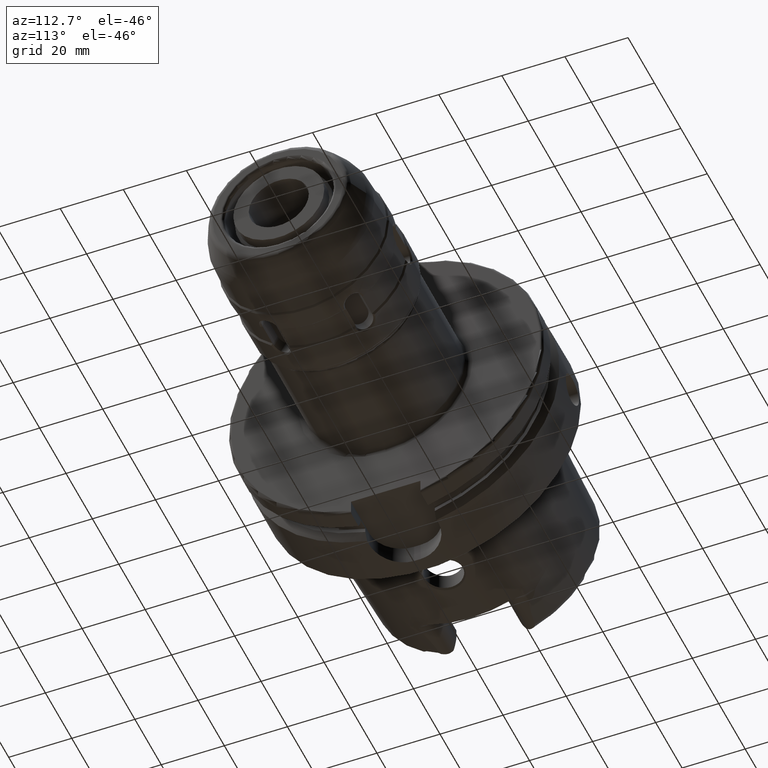
[diagram: clean part render]
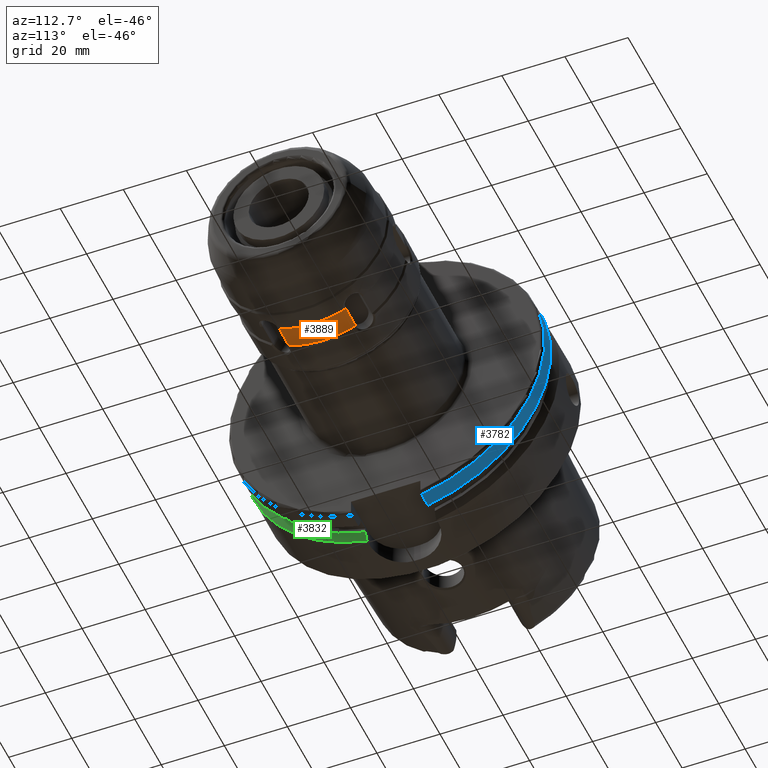
[diagram: same view with three faces highlighted in distinct colors, each labeled with its STEP entity id]
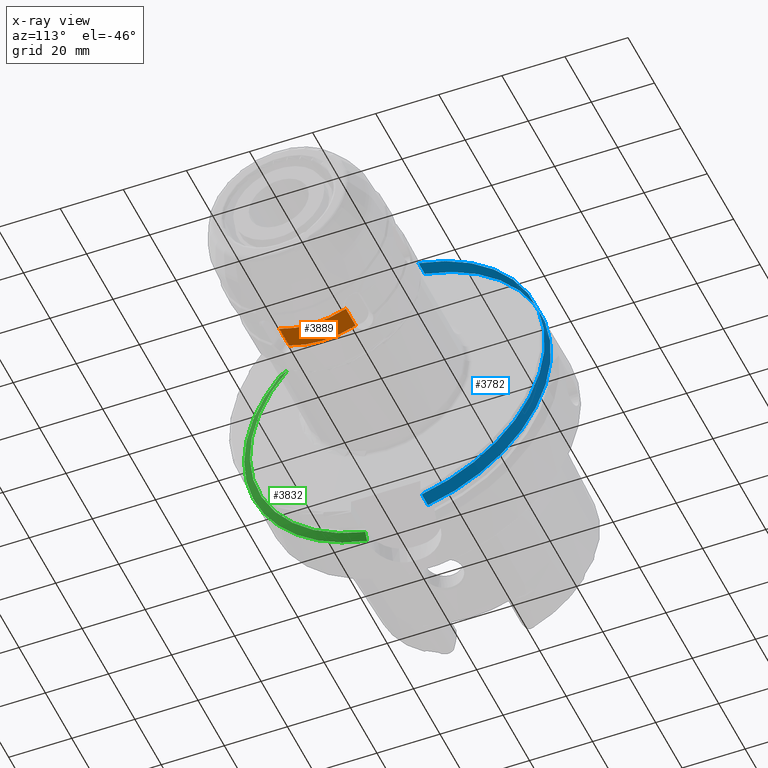
[diagram: x-ray of the same camera — body ghosted, the three highlighted faces saturated]
A machine part, auxiliary view with three faces highlighted in distinct colors.
The next image is the same camera in x-ray (body ghosted, the three faces saturated) — at least one of them is partly hidden behind the body in this view.
Their STEP definitions:

[orange] entity #3889 — the highlighted cylindrical surface (partial cylindrical patch) has radius 26.5 mm, axis along (1, 0, 0).
#453=LINE('',#8422,#634);
#466=LINE('',#8711,#647);
#634=VECTOR('',#5254,10.);
#647=VECTOR('',#5279,10.);
#739=CYLINDRICAL_SURFACE('',#4369,26.5);
#920=FACE_OUTER_BOUND('',#1142,.T.);
#1142=EDGE_LOOP('',(#3475,#3476,#3477,#3478));
#1377=CIRCLE('',#4329,26.5);
#1379=CIRCLE('',#4335,26.5);
#1769=VERTEX_POINT('',#8417);
#1770=VERTEX_POINT('',#8421);
#1776=VERTEX_POINT('',#8459);
#1787=VERTEX_POINT('',#8709);
#2318=EDGE_CURVE('',#1770,#1769,#453,.T.);
#2326=EDGE_CURVE('',#1776,#1769,#1377,.T.);
#2344=EDGE_CURVE('',#1776,#1787,#466,.T.);
#2349=EDGE_CURVE('',#1787,#1770,#1379,.T.);
#3475=ORIENTED_EDGE('',*,*,#2318,.T.);
#3476=ORIENTED_EDGE('',*,*,#2326,.F.);
#3477=ORIENTED_EDGE('',*,*,#2344,.T.);
#3478=ORIENTED_EDGE('',*,*,#2349,.T.);
#3889=ADVANCED_FACE('',(#920),#739,.T.);
#4329=AXIS2_PLACEMENT_3D('',#8463,#5261,#5262);
#4335=AXIS2_PLACEMENT_3D('',#8830,#5282,#5283);
#4369=AXIS2_PLACEMENT_3D('',#8932,#5369,#5370);
#5254=DIRECTION('',(1.,0.,0.));
#5261=DIRECTION('center_axis',(1.,0.,0.));
#5262=DIRECTION('ref_axis',(0.,0.,-1.));
#5279=DIRECTION('',(-1.,0.,0.));
#5282=DIRECTION('center_axis',(1.,0.,0.));
#5283=DIRECTION('ref_axis',(0.,0.,-1.));
#5369=DIRECTION('center_axis',(1.,0.,0.));
#5370=DIRECTION('ref_axis',(0.,1.,0.));
#8417=CARTESIAN_POINT('',(19.4,-10.5667443343283,24.3021380576471));
#8421=CARTESIAN_POINT('',(12.,-10.5667443343283,24.3021380576471));
#8422=CARTESIAN_POINT('',(15.7,-10.5667443343283,24.3021380576471));
#8459=CARTESIAN_POINT('',(19.4,10.5667443343283,24.3021380576471));
#8463=CARTESIAN_POINT('Origin',(19.4,0.,0.));
#8709=CARTESIAN_POINT('',(12.,10.5667443343283,24.3021380576471));
#8711=CARTESIAN_POINT('',(15.7,10.5667443343283,24.3021380576471));
#8830=CARTESIAN_POINT('Origin',(12.,0.,0.));
#8932=CARTESIAN_POINT('Origin',(15.7,0.,0.));

[blue] entity #3782 — the highlighted cylindrical surface (partial cylindrical patch) has radius 50 mm, axis along (1, 0, 0).
#400=LINE('',#6827,#581);
#410=LINE('',#6909,#591);
#581=VECTOR('',#4845,10.);
#591=VECTOR('',#4881,10.);
#710=CYLINDRICAL_SURFACE('',#4161,50.);
#813=FACE_OUTER_BOUND('',#1031,.T.);
#1031=EDGE_LOOP('',(#2865,#2866,#2867,#2868));
#1280=CIRCLE('',#4158,50.);
#1282=CIRCLE('',#4162,50.);
#1620=VERTEX_POINT('',#6777);
#1628=VERTEX_POINT('',#6823);
#1640=VERTEX_POINT('',#6892);
#1641=VERTEX_POINT('',#6907);
#2095=EDGE_CURVE('',#1620,#1628,#400,.T.);
#2112=EDGE_CURVE('',#1620,#1640,#1280,.T.);
#2115=EDGE_CURVE('',#1628,#1641,#1282,.T.);
#2116=EDGE_CURVE('',#1641,#1640,#410,.T.);
#2865=ORIENTED_EDGE('',*,*,#2095,.T.);
#2866=ORIENTED_EDGE('',*,*,#2115,.T.);
#2867=ORIENTED_EDGE('',*,*,#2116,.T.);
#2868=ORIENTED_EDGE('',*,*,#2112,.F.);
#3782=ADVANCED_FACE('',(#813),#710,.T.);
#4158=AXIS2_PLACEMENT_3D('',#6893,#4871,#4872);
#4161=AXIS2_PLACEMENT_3D('',#6906,#4877,#4878);
#4162=AXIS2_PLACEMENT_3D('',#6908,#4879,#4880);
#4845=DIRECTION('',(-1.,0.,0.));
#4871=DIRECTION('center_axis',(1.,0.,0.));
#4872=DIRECTION('ref_axis',(0.,0.,-1.));
#4877=DIRECTION('center_axis',(1.,0.,0.));
#4878=DIRECTION('ref_axis',(0.,1.,0.));
#4879=DIRECTION('center_axis',(1.,0.,0.));
#4880=DIRECTION('ref_axis',(0.,0.,-1.));
#4881=DIRECTION('',(1.,0.,0.));
#6777=CARTESIAN_POINT('',(28.,11.,-48.7749935930288));
#6823=CARTESIAN_POINT('',(23.2620290209214,11.,-48.7749935930288));
#6827=CARTESIAN_POINT('',(25.6310145104607,11.,-48.7749935930288));
#6892=CARTESIAN_POINT('',(28.,10.,48.9897948556636));
#6893=CARTESIAN_POINT('Origin',(28.,0.,0.));
#6906=CARTESIAN_POINT('Origin',(25.6310145104607,0.,0.));
#6907=CARTESIAN_POINT('',(23.2620290209214,10.,48.9897948556636));
#6908=CARTESIAN_POINT('Origin',(23.2620290209214,0.,0.));
#6909=CARTESIAN_POINT('',(25.6310145104607,10.,48.9897948556636));

[green] entity #3832 — the highlighted conical surface has half-angle 60 deg.
#33=(
BOUNDED_CURVE()
B_SPLINE_CURVE(2,(#6600,#6601,#6602),.UNSPECIFIED.,.F.,.F.)
B_SPLINE_CURVE_WITH_KNOTS((3,3),(0.,0.343884390880418),.UNSPECIFIED.)
CURVE()
GEOMETRIC_REPRESENTATION_ITEM()
RATIONAL_B_SPLINE_CURVE((1.,1.00052016256811,1.))
REPRESENTATION_ITEM('')
);
#40=(
BOUNDED_CURVE()
B_SPLINE_CURVE(2,(#6874,#6875,#6876),.UNSPECIFIED.,.F.,.F.)
B_SPLINE_CURVE_WITH_KNOTS((3,3),(0.,0.282923490805559),.UNSPECIFIED.)
CURVE()
GEOMETRIC_REPRESENTATION_ITEM()
RATIONAL_B_SPLINE_CURVE((1.,1.00031934107399,1.))
REPRESENTATION_ITEM('')
);
#216=CONICAL_SURFACE('',#4276,48.7987976320958,1.0471975511966);
#863=FACE_OUTER_BOUND('',#1085,.T.);
#1085=EDGE_LOOP('',(#3133,#3134,#3135,#3136,#3137));
#1266=CIRCLE('',#4128,50.);
#1269=CIRCLE('',#4131,50.);
#1347=CIRCLE('',#4277,47.5975952641917);
#1590=VERTEX_POINT('',#6597);
#1591=VERTEX_POINT('',#6599);
#1608=VERTEX_POINT('',#6701);
#1609=VERTEX_POINT('',#6703);
#1636=VERTEX_POINT('',#6872);
#2044=EDGE_CURVE('',#1591,#1590,#33,.T.);
#2063=EDGE_CURVE('',#1609,#1608,#1266,.T.);
#2067=EDGE_CURVE('',#1590,#1609,#1269,.T.);
#2104=EDGE_CURVE('',#1608,#1636,#40,.T.);
#2209=EDGE_CURVE('',#1591,#1636,#1347,.T.);
#3133=ORIENTED_EDGE('',*,*,#2044,.T.);
#3134=ORIENTED_EDGE('',*,*,#2067,.T.);
#3135=ORIENTED_EDGE('',*,*,#2063,.T.);
#3136=ORIENTED_EDGE('',*,*,#2104,.T.);
#3137=ORIENTED_EDGE('',*,*,#2209,.F.);
#3832=ADVANCED_FACE('',(#863),#216,.T.);
#4128=AXIS2_PLACEMENT_3D('',#6704,#4791,#4792);
#4131=AXIS2_PLACEMENT_3D('',#6710,#4798,#4799);
#4276=AXIS2_PLACEMENT_3D('',#7157,#5128,#5129);
#4277=AXIS2_PLACEMENT_3D('',#7158,#5130,#5131);
#4791=DIRECTION('center_axis',(1.,0.,0.));
#4792=DIRECTION('ref_axis',(0.,0.,-1.));
#4798=DIRECTION('center_axis',(1.,0.,0.));
#4799=DIRECTION('ref_axis',(0.,0.,-1.));
#5128=DIRECTION('center_axis',(-1.,0.,0.));
#5129=DIRECTION('ref_axis',(0.,-0.951449961441176,-0.307803461438603));
#5130=DIRECTION('center_axis',(1.,0.,0.));
#5131=DIRECTION('ref_axis',(0.,0.,-1.));
#6597=CARTESIAN_POINT('',(16.7379709790786,-38.8297566307078,31.5));
#6599=CARTESIAN_POINT('',(18.125,-35.6830642593065,31.5));
#6600=CARTESIAN_POINT('Ctrl Pts',(18.125,-35.6830642593065,31.5));
#6601=CARTESIAN_POINT('Ctrl Pts',(17.4607727557242,-37.2176818849687,31.5));
#6602=CARTESIAN_POINT('Ctrl Pts',(16.7379709790786,-38.8297566307079,31.5));
#6701=CARTESIAN_POINT('',(16.7379709790786,-11.,-48.7749935930288));
#6703=CARTESIAN_POINT('',(16.7379709790786,-50.,-6.12323399573677E-15));
#6704=CARTESIAN_POINT('Origin',(16.7379709790786,0.,0.));
#6710=CARTESIAN_POINT('Origin',(16.7379709790786,0.,0.));
#6872=CARTESIAN_POINT('',(18.125,-11.,-46.3090819919139));
#6874=CARTESIAN_POINT('Ctrl Pts',(16.7379709790786,-11.,-48.7749935930288));
#6875=CARTESIAN_POINT('Ctrl Pts',(17.4494711035006,-11.,-47.5116880810147));
#6876=CARTESIAN_POINT('Ctrl Pts',(18.125,-11.,-46.3090819919139));
#7157=CARTESIAN_POINT('Origin',(17.4314854895393,0.,0.));
#7158=CARTESIAN_POINT('Origin',(18.125,0.,0.));